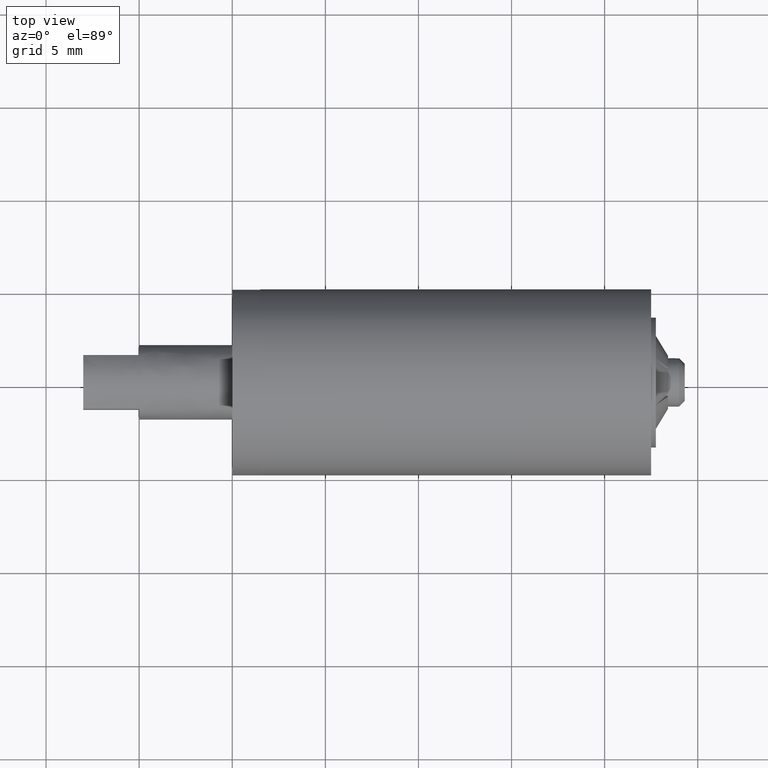
[diagram: clean part render]
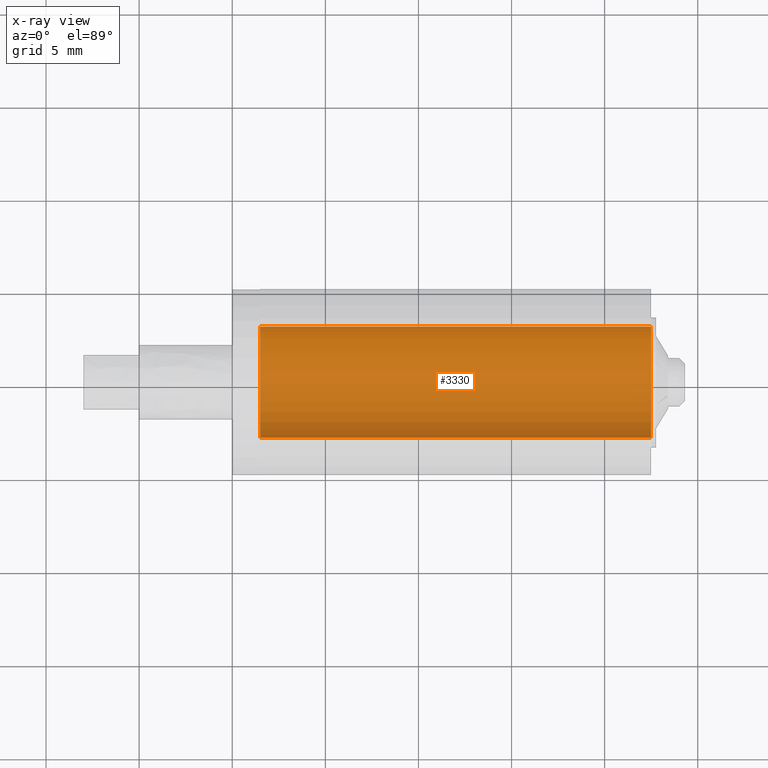
[diagram: x-ray — body ghosted, one internal face saturated and labeled with its STEP entity id]
A machine part, top view, then the same camera in x-ray: the body is ghosted and one INTERNAL B-rep face — a face not visible from any outside direction — is saturated and labeled: STEP entity #3330.
In plain terms, the highlighted face is a freeform B-spline surface patch.
Its self-contained STEP definition (entity closure, byte-faithful):
#3228=CARTESIAN_POINT('',(5.975000000000001,-2.979028579091000,0.354102703970275));
#3229=CARTESIAN_POINT('',(5.975000000000000,-2.989162846345817,0.268844185913933));
#3230=CARTESIAN_POINT('',(5.974999999999999,-2.994404395265600,0.183145618604571));
#3231=CARTESIAN_POINT('',(5.974999999999999,-3.177550013870171,-2.811258776661029));
#3232=CARTESIAN_POINT('',(5.974999999999999,-0.183145618604571,-2.994404395265600));
#3233=CARTESIAN_POINT('',(5.974999999999999,2.811258776661029,-3.177550013870171));
#3234=CARTESIAN_POINT('',(5.974999999999999,2.994404395265600,-0.183145618604571));
#3235=CARTESIAN_POINT('',(28.038125000000004,-2.979028579091000,0.354102703970275));
#3236=CARTESIAN_POINT('',(28.038125000000008,-2.989162846345817,0.268844185913933));
#3237=CARTESIAN_POINT('',(28.038125000000001,-2.994404395265600,0.183145618604571));
#3238=CARTESIAN_POINT('',(28.038125000000001,-3.177550013870171,-2.811258776661029));
#3239=CARTESIAN_POINT('',(28.038125000000001,-0.183145618604571,-2.994404395265600));
#3240=CARTESIAN_POINT('',(28.038125000000001,2.811258776661029,-3.177550013870171));
#3241=CARTESIAN_POINT('',(28.038125000000001,2.994404395265600,-0.183145618604571));
#3249=(BOUNDED_SURFACE()B_SPLINE_SURFACE(2,1,((#3228,#3235),(#3229,#3236),(#3230,#3237),(#3231,#3238),(#3232,#3239),(#3233,#3240),(#3234,#3241)),.UNSPECIFIED.,.F.,.F.,.U.)B_SPLINE_SURFACE_WITH_KNOTS((3,2,2,3),(2,2),(0.0,0.198822509939086,5.169385258416225,10.139948006893370),(0.0,22.063125000000010),.UNSPECIFIED.)GEOMETRIC_REPRESENTATION_ITEM()RATIONAL_B_SPLINE_SURFACE(((0.977505800795127,0.977505800795127),(0.988284271247462,0.988284271247462),(1.0,1.0),(0.707106781186548,0.707106781186548),(1.0,1.0),(0.707106781186548,0.707106781186548),(1.0,1.0)))REPRESENTATION_ITEM('')SURFACE());
#3250=CARTESIAN_POINT('',(27.500000000000000,-2.979028579016237,0.354102704599239));
#3251=VERTEX_POINT('',#3250);
#3252=CARTESIAN_POINT('',(27.500000000000000,0.0,-3.0));
#3253=VERTEX_POINT('',#3252);
#3254=CARTESIAN_POINT('',(27.500000000000000,-2.979028579016238,0.354102704599239));
#3255=CARTESIAN_POINT('',(27.500000000000004,-3.0,0.177672359591343));
#3256=CARTESIAN_POINT('',(27.500000000000000,-3.0,0.0));
#3257=CARTESIAN_POINT('',(27.500000000000004,-3.0,-3.0));
#3258=CARTESIAN_POINT('',(27.500000000000000,0.0,-3.0));
#3266=(BOUNDED_CURVE()B_SPLINE_CURVE(2,(#3254,#3255,#3256,#3257,#3258),.UNSPECIFIED.,.F.,.U.)B_SPLINE_CURVE_WITH_KNOTS((3,2,3),(0.229562473444281,0.250000000000000,0.500000000000000),.UNSPECIFIED.)CURVE()GEOMETRIC_REPRESENTATION_ITEM()RATIONAL_B_SPLINE_CURVE((0.956026754048011,0.976055948250040,1.0,0.707106781186548,1.0))REPRESENTATION_ITEM(''));
#3267=EDGE_CURVE('',#3251,#3253,#3266,.T.);
#3268=ORIENTED_EDGE('',*,*,#3267,.T.);
#3269=CARTESIAN_POINT('',(27.500000000000000,2.994404395264531,-0.183145618622066));
#3270=VERTEX_POINT('',#3269);
#3271=CARTESIAN_POINT('',(27.500000000000000,0.0,-3.0));
#3272=CARTESIAN_POINT('',(27.499999999999993,2.822118200684028,-3.0));
#3273=CARTESIAN_POINT('',(27.500000000000004,2.994404395264531,-0.183145618622066));
#3281=(BOUNDED_CURVE()B_SPLINE_CURVE(2,(#3271,#3272,#3273),.UNSPECIFIED.,.F.,.U.)B_SPLINE_CURVE_WITH_KNOTS((3,3),(0.500000000000000,0.739332962239951),.UNSPECIFIED.)CURVE()GEOMETRIC_REPRESENTATION_ITEM()RATIONAL_B_SPLINE_CURVE((1.0,0.719603993285529,0.976072041668878))REPRESENTATION_ITEM(''));
#3282=EDGE_CURVE('',#3253,#3270,#3281,.T.);
#3283=ORIENTED_EDGE('',*,*,#3282,.T.);
#3284=CARTESIAN_POINT('',(6.500000000000000,2.994404395264531,-0.183145618622066));
#3285=VERTEX_POINT('',#3284);
#3286=CARTESIAN_POINT('',(6.500000000000000,2.994404395264531,-0.183145618622066));
#3287=CARTESIAN_POINT('',(27.500000000000000,2.994404395264531,-0.183145618622066));
#3288=QUASI_UNIFORM_CURVE('',1,(#3286,#3287),.UNSPECIFIED.,.F.,.U.);
#3289=EDGE_CURVE('',#3285,#3270,#3288,.T.);
#3290=ORIENTED_EDGE('',*,*,#3289,.F.);
#3291=CARTESIAN_POINT('',(6.500000000000000,0.0,-3.0));
#3292=VERTEX_POINT('',#3291);
#3293=CARTESIAN_POINT('',(6.500000000000000,0.0,-3.0));
#3294=CARTESIAN_POINT('',(6.500000000000001,2.822118200684028,-3.0));
#3295=CARTESIAN_POINT('',(6.500000000000000,2.994404395264531,-0.183145618622066));
#3303=(BOUNDED_CURVE()B_SPLINE_CURVE(2,(#3293,#3294,#3295),.UNSPECIFIED.,.F.,.U.)B_SPLINE_CURVE_WITH_KNOTS((3,3),(0.500000000000000,0.739332962239951),.UNSPECIFIED.)CURVE()GEOMETRIC_REPRESENTATION_ITEM()RATIONAL_B_SPLINE_CURVE((1.0,0.719603993285529,0.976072041668878))REPRESENTATION_ITEM(''));
#3304=EDGE_CURVE('',#3292,#3285,#3303,.T.);
#3305=ORIENTED_EDGE('',*,*,#3304,.F.);
#3306=CARTESIAN_POINT('',(6.500000000000000,-2.979028579016237,0.354102704599239));
#3307=VERTEX_POINT('',#3306);
#3308=CARTESIAN_POINT('',(6.500000000000000,-2.979028579016238,0.354102704599239));
#3309=CARTESIAN_POINT('',(6.500000000000001,-3.0,0.177672359591343));
#3310=CARTESIAN_POINT('',(6.500000000000000,-3.0,0.0));
#3311=CARTESIAN_POINT('',(6.500000000000001,-3.0,-3.0));
#3312=CARTESIAN_POINT('',(6.500000000000000,0.0,-3.0));
#3320=(BOUNDED_CURVE()B_SPLINE_CURVE(2,(#3308,#3309,#3310,#3311,#3312),.UNSPECIFIED.,.F.,.U.)B_SPLINE_CURVE_WITH_KNOTS((3,2,3),(0.229562473444281,0.250000000000000,0.500000000000000),.UNSPECIFIED.)CURVE()GEOMETRIC_REPRESENTATION_ITEM()RATIONAL_B_SPLINE_CURVE((0.956026754048011,0.976055948250040,1.0,0.707106781186548,1.0))REPRESENTATION_ITEM(''));
#3321=EDGE_CURVE('',#3307,#3292,#3320,.T.);
#3322=ORIENTED_EDGE('',*,*,#3321,.F.);
#3323=CARTESIAN_POINT('',(6.500000000000000,-2.979028579016237,0.354102704599239));
#3324=CARTESIAN_POINT('',(27.500000000000000,-2.979028579016237,0.354102704599239));
#3325=QUASI_UNIFORM_CURVE('',1,(#3323,#3324),.UNSPECIFIED.,.F.,.U.);
#3326=EDGE_CURVE('',#3307,#3251,#3325,.T.);
#3327=ORIENTED_EDGE('',*,*,#3326,.T.);
#3328=EDGE_LOOP('',(#3268,#3283,#3290,#3305,#3322,#3327));
#3329=FACE_OUTER_BOUND('',#3328,.T.);
#3330=ADVANCED_FACE('',(#3329),#3249,.F.);